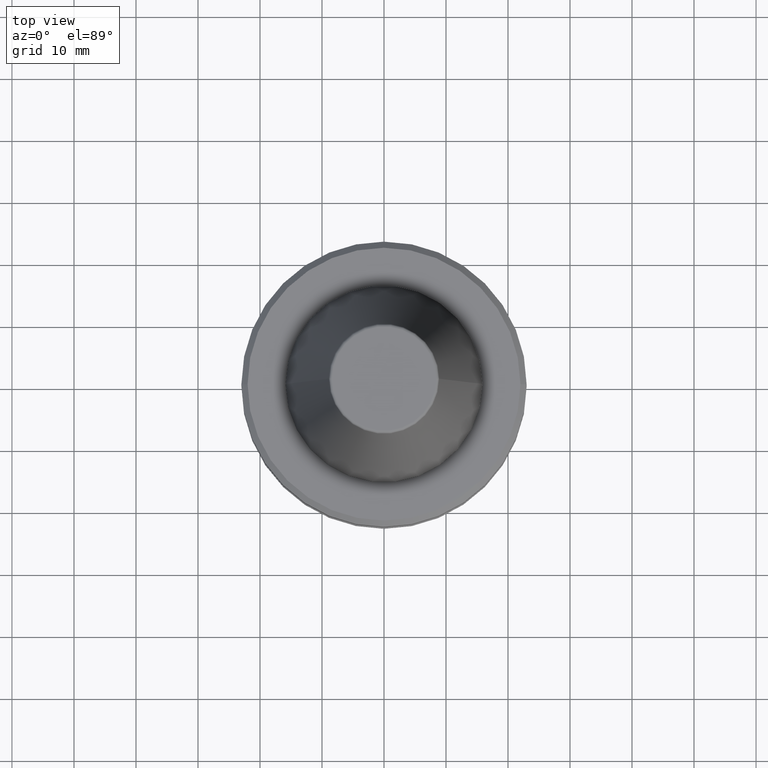
[diagram: clean part render]
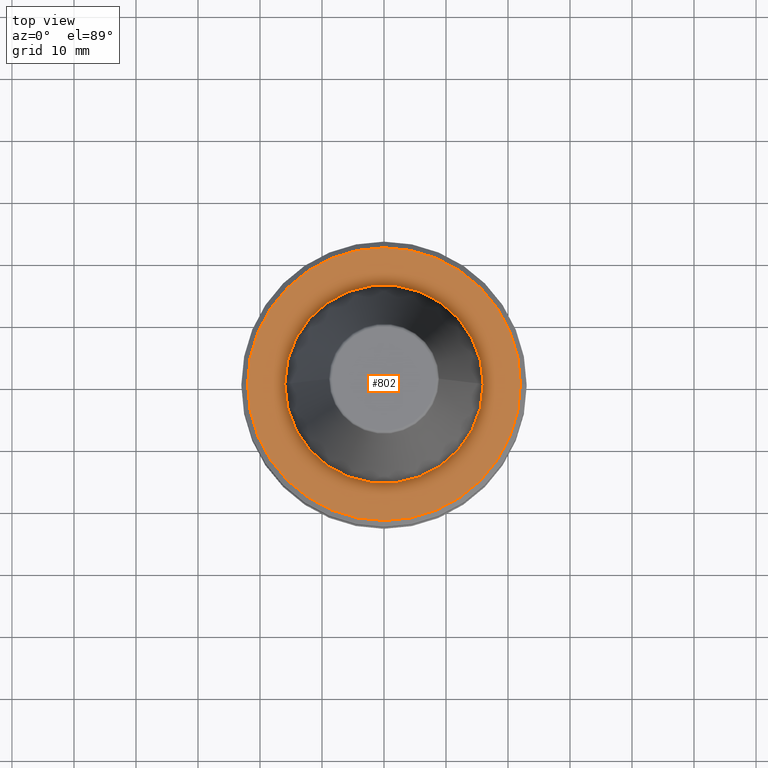
[diagram: same view with one face highlighted and labeled with its STEP entity id]
A machine part, top view. The second image highlights one B-rep face of the part: STEP entity #802.
In plain terms, the highlighted planar face has unit normal (0, 0, -1).
Its self-contained STEP definition (entity closure, byte-faithful):
#12 = VERTEX_POINT ( 'NONE', #831 ) ;
#18 = DIRECTION ( 'NONE',  ( -0.0000000000000000000, -0.0000000000000000000, 1.000000000000000000 ) ) ;
#31 = CIRCLE ( 'NONE', #308, 16.00000000000045800 ) ;
#32 = VERTEX_POINT ( 'NONE', #254 ) ;
#74 = DIRECTION ( 'NONE',  ( 1.000000000000000000, 0.0000000000000000000, 0.0000000000000000000 ) ) ;
#168 = CARTESIAN_POINT ( 'NONE',  ( 22.00000000000002100, 2.755455298081540000E-015, -2.000000000000001800 ) ) ;
#187 = EDGE_CURVE ( 'NONE', #12, #486, #418, .T. ) ;
#203 = ORIENTED_EDGE ( 'NONE', *, *, #804, .F. ) ;
#221 = DIRECTION ( 'NONE',  ( -1.000000000000000000, 0.0000000000000000000, -0.0000000000000000000 ) ) ;
#237 = AXIS2_PLACEMENT_3D ( 'NONE', #488, #337, #74 ) ;
#254 = CARTESIAN_POINT ( 'NONE',  ( 16.00000000000045800, 0.0000000000000000000, -2.000000000000085300 ) ) ;
#297 = EDGE_CURVE ( 'NONE', #486, #12, #552, .T. ) ;
#304 = ORIENTED_EDGE ( 'NONE', *, *, #297, .T. ) ;
#308 = AXIS2_PLACEMENT_3D ( 'NONE', #760, #990, #846 ) ;
#337 = DIRECTION ( 'NONE',  ( -0.0000000000000000000, -0.0000000000000000000, 1.000000000000000000 ) ) ;
#346 = CARTESIAN_POINT ( 'NONE',  ( -16.00000000000045800, 1.959434878635820700E-015, -2.000000000000085300 ) ) ;
#360 = DIRECTION ( 'NONE',  ( 1.000000000000000000, 0.0000000000000000000, 0.0000000000000000000 ) ) ;
#380 = AXIS2_PLACEMENT_3D ( 'NONE', #458, #700, #221 ) ;
#394 = PLANE ( 'NONE',  #380 ) ;
#418 = CIRCLE ( 'NONE', #237, 22.00000000000002100 ) ;
#457 = FACE_OUTER_BOUND ( 'NONE', #747, .T. ) ;
#458 = CARTESIAN_POINT ( 'NONE',  ( 0.0000000000000000000, 22.00000000000002100, -2.000000000000001800 ) ) ;
#461 = CARTESIAN_POINT ( 'NONE',  ( 0.0000000000000000000, 0.0000000000000000000, -2.000000000000001800 ) ) ;
#486 = VERTEX_POINT ( 'NONE', #168 ) ;
#488 = CARTESIAN_POINT ( 'NONE',  ( 0.0000000000000000000, 0.0000000000000000000, -2.000000000000001800 ) ) ;
#507 = CARTESIAN_POINT ( 'NONE',  ( 0.0000000000000000000, 0.0000000000000000000, -2.000000000000001800 ) ) ;
#546 = DIRECTION ( 'NONE',  ( 1.000000000000000000, 0.0000000000000000000, 0.0000000000000000000 ) ) ;
#552 = CIRCLE ( 'NONE', #1030, 22.00000000000002100 ) ;
#617 = AXIS2_PLACEMENT_3D ( 'NONE', #461, #1022, #546 ) ;
#644 = CIRCLE ( 'NONE', #617, 16.00000000000045800 ) ;
#700 = DIRECTION ( 'NONE',  ( 0.0000000000000000000, 0.0000000000000000000, -1.000000000000000000 ) ) ;
#747 = EDGE_LOOP ( 'NONE', ( #971, #304 ) ) ;
#760 = CARTESIAN_POINT ( 'NONE',  ( 0.0000000000000000000, 0.0000000000000000000, -2.000000000000001800 ) ) ;
#802 = ADVANCED_FACE ( 'NONE', ( #855, #457 ), #394, .F. ) ;
#804 = EDGE_CURVE ( 'NONE', #1024, #32, #644, .T. ) ;
#831 = CARTESIAN_POINT ( 'NONE',  ( -22.00000000000002100, 0.0000000000000000000, -2.000000000000001800 ) ) ;
#846 = DIRECTION ( 'NONE',  ( 1.000000000000000000, 0.0000000000000000000, 0.0000000000000000000 ) ) ;
#855 = FACE_BOUND ( 'NONE', #939, .T. ) ;
#939 = EDGE_LOOP ( 'NONE', ( #986, #203 ) ) ;
#971 = ORIENTED_EDGE ( 'NONE', *, *, #187, .T. ) ;
#986 = ORIENTED_EDGE ( 'NONE', *, *, #1023, .F. ) ;
#990 = DIRECTION ( 'NONE',  ( -0.0000000000000000000, -0.0000000000000000000, 1.000000000000000000 ) ) ;
#1022 = DIRECTION ( 'NONE',  ( -0.0000000000000000000, -0.0000000000000000000, 1.000000000000000000 ) ) ;
#1023 = EDGE_CURVE ( 'NONE', #32, #1024, #31, .T. ) ;
#1024 = VERTEX_POINT ( 'NONE', #346 ) ;
#1030 = AXIS2_PLACEMENT_3D ( 'NONE', #507, #18, #360 ) ;